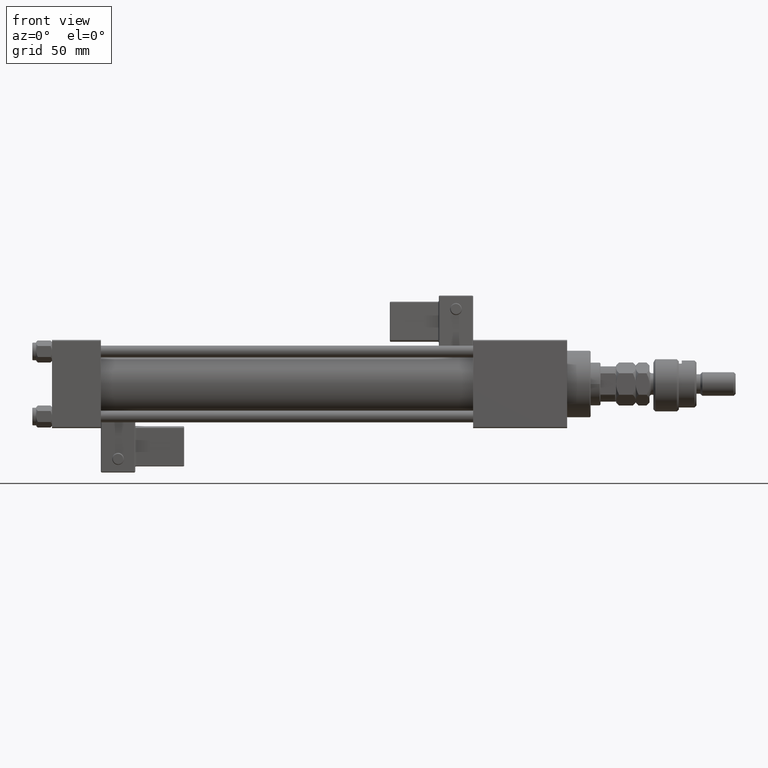
[diagram: clean part render]
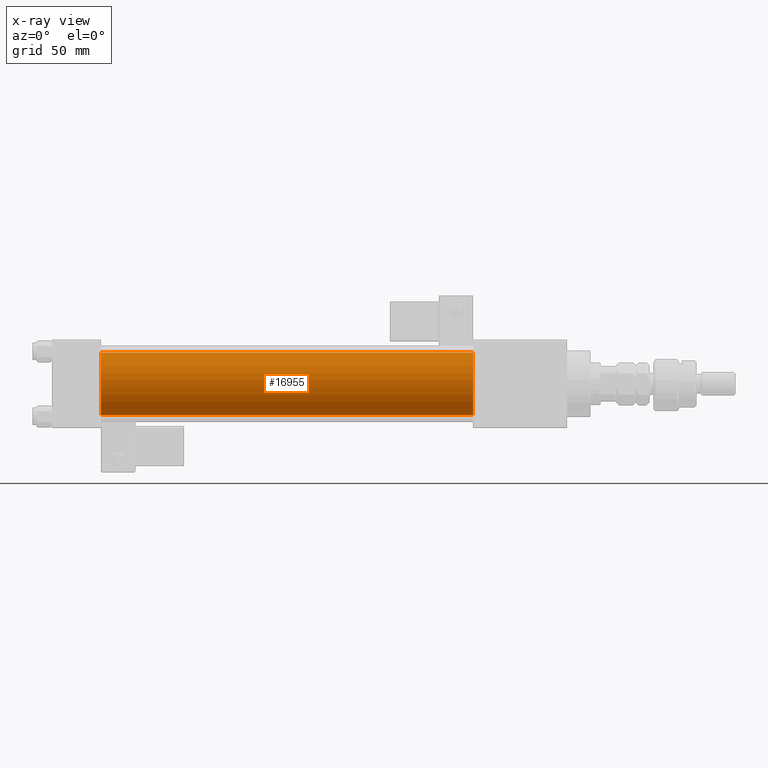
[diagram: x-ray — body ghosted, one internal face saturated and labeled with its STEP entity id]
A machine part, front view, then the same camera in x-ray: the body is ghosted and one INTERNAL B-rep face — a face not visible from any outside direction — is saturated and labeled: STEP entity #16955.
In plain terms, the highlighted cylindrical surface (edge-blend (fillet) strip) has radius 16 mm, axis along (-1, -0, -0).
Its self-contained STEP definition (entity closure, byte-faithful):
#276 = CYLINDRICAL_SURFACE ( 'NONE', #41499, 16.00000000000000000 ) ;
#630 = EDGE_CURVE ( 'NONE', #27135, #2510, #27428, .T. ) ;
#2324 = DIRECTION ( 'NONE',  ( 0.000000000000000000, 0.000000000000000000, -1.000000000000000000 ) ) ;
#2510 = VERTEX_POINT ( 'NONE', #26289 ) ;
#3068 = ORIENTED_EDGE ( 'NONE', *, *, #7370, .T. ) ;
#4196 = DIRECTION ( 'NONE',  ( -1.000000000000000000, -0.000000000000000000, -0.000000000000000000 ) ) ;
#4271 = LINE ( 'NONE', #12129, #40069 ) ;
#4368 = CARTESIAN_POINT ( 'NONE',  ( 215.0000000000000000, -2.602085213965210642E-15, 16.00000000000000000 ) ) ;
#7370 = EDGE_CURVE ( 'NONE', #27135, #50016, #26878, .T. ) ;
#7760 = VERTEX_POINT ( 'NONE', #45411 ) ;
#8958 = DIRECTION ( 'NONE',  ( 0.000000000000000000, 0.000000000000000000, 1.000000000000000000 ) ) ;
#11001 = DIRECTION ( 'NONE',  ( 1.000000000000000000, 0.000000000000000000, 0.000000000000000000 ) ) ;
#12129 = CARTESIAN_POINT ( 'NONE',  ( 215.0000000000000000, -6.426503353294456087E-16, -16.00000000000000000 ) ) ;
#16955 = ADVANCED_FACE ( 'NONE', ( #46807 ), #276, .F. ) ;
#19063 = DIRECTION ( 'NONE',  ( -1.000000000000000000, -0.000000000000000000, -0.000000000000000000 ) ) ;
#20695 = EDGE_CURVE ( 'NONE', #50016, #7760, #4271, .T. ) ;
#24260 = EDGE_CURVE ( 'NONE', #2510, #7760, #33963, .T. ) ;
#24997 = EDGE_LOOP ( 'NONE', ( #3068, #47423, #50640, #35164 ) ) ;
#25284 = DIRECTION ( 'NONE',  ( -1.000000000000000000, -0.000000000000000000, -0.000000000000000000 ) ) ;
#25681 = CARTESIAN_POINT ( 'NONE',  ( 215.0000000000000000, -6.426503353294456087E-16, -16.00000000000000000 ) ) ;
#26289 = CARTESIAN_POINT ( 'NONE',  ( 25.00000000000000000, -2.602085213965210642E-15, 16.00000000000000000 ) ) ;
#26878 = CIRCLE ( 'NONE', #51068, 16.00000000000000000 ) ;
#27135 = VERTEX_POINT ( 'NONE', #4368 ) ;
#27428 = LINE ( 'NONE', #31643, #42746 ) ;
#27539 = DIRECTION ( 'NONE',  ( 0.000000000000000000, 0.000000000000000000, -1.000000000000000000 ) ) ;
#31643 = CARTESIAN_POINT ( 'NONE',  ( 215.0000000000000000, -2.602085213965210642E-15, 16.00000000000000000 ) ) ;
#33963 = CIRCLE ( 'NONE', #51879, 16.00000000000000000 ) ;
#35164 = ORIENTED_EDGE ( 'NONE', *, *, #630, .F. ) ;
#36256 = CARTESIAN_POINT ( 'NONE',  ( 25.00000000000000000, -2.602085213965210642E-15, 0.000000000000000000 ) ) ;
#40069 = VECTOR ( 'NONE', #25284, 1000.000000000000000 ) ;
#41499 = AXIS2_PLACEMENT_3D ( 'NONE', #42596, #4196, #8958 ) ;
#42596 = CARTESIAN_POINT ( 'NONE',  ( 215.0000000000000000, -2.602085213965210642E-15, 0.000000000000000000 ) ) ;
#42746 = VECTOR ( 'NONE', #19063, 1000.000000000000000 ) ;
#45411 = CARTESIAN_POINT ( 'NONE',  ( 25.00000000000000000, -6.426503353294456087E-16, -16.00000000000000000 ) ) ;
#46807 = FACE_OUTER_BOUND ( 'NONE', #24997, .T. ) ;
#47423 = ORIENTED_EDGE ( 'NONE', *, *, #20695, .T. ) ;
#49709 = DIRECTION ( 'NONE',  ( 1.000000000000000000, 0.000000000000000000, 0.000000000000000000 ) ) ;
#50016 = VERTEX_POINT ( 'NONE', #25681 ) ;
#50640 = ORIENTED_EDGE ( 'NONE', *, *, #24260, .F. ) ;
#51068 = AXIS2_PLACEMENT_3D ( 'NONE', #53608, #11001, #2324 ) ;
#51879 = AXIS2_PLACEMENT_3D ( 'NONE', #36256, #49709, #27539 ) ;
#53608 = CARTESIAN_POINT ( 'NONE',  ( 215.0000000000000000, -2.602085213965210642E-15, 0.000000000000000000 ) ) ;